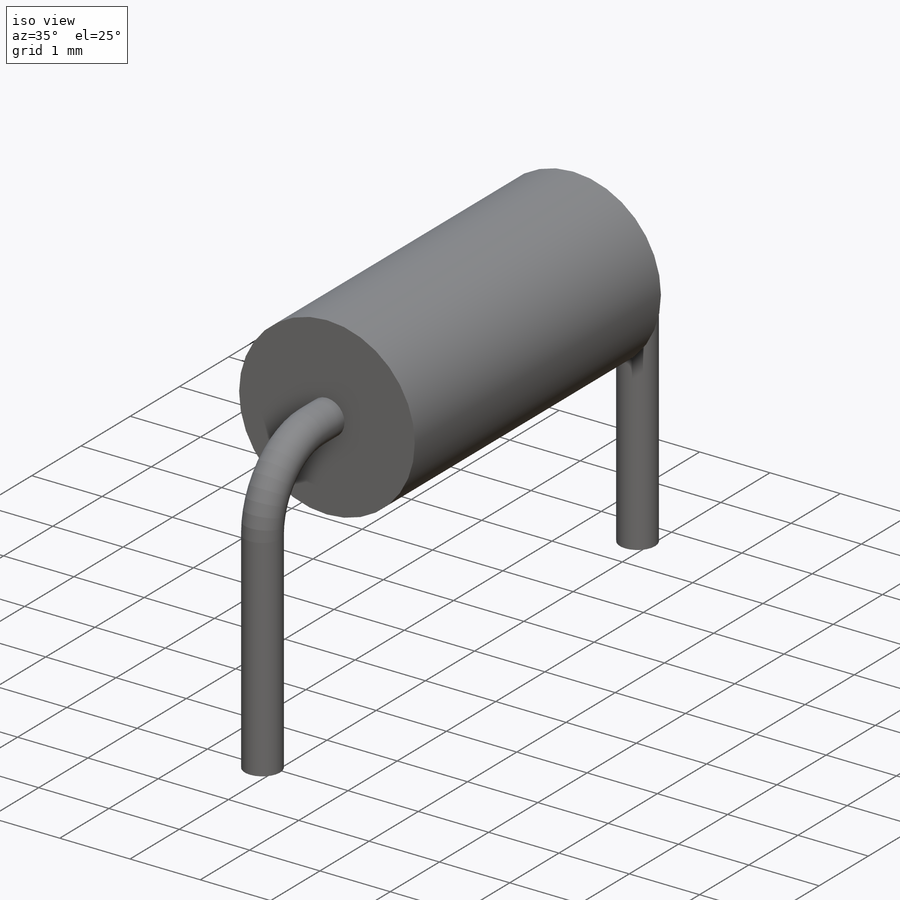
[diagram: iso view]
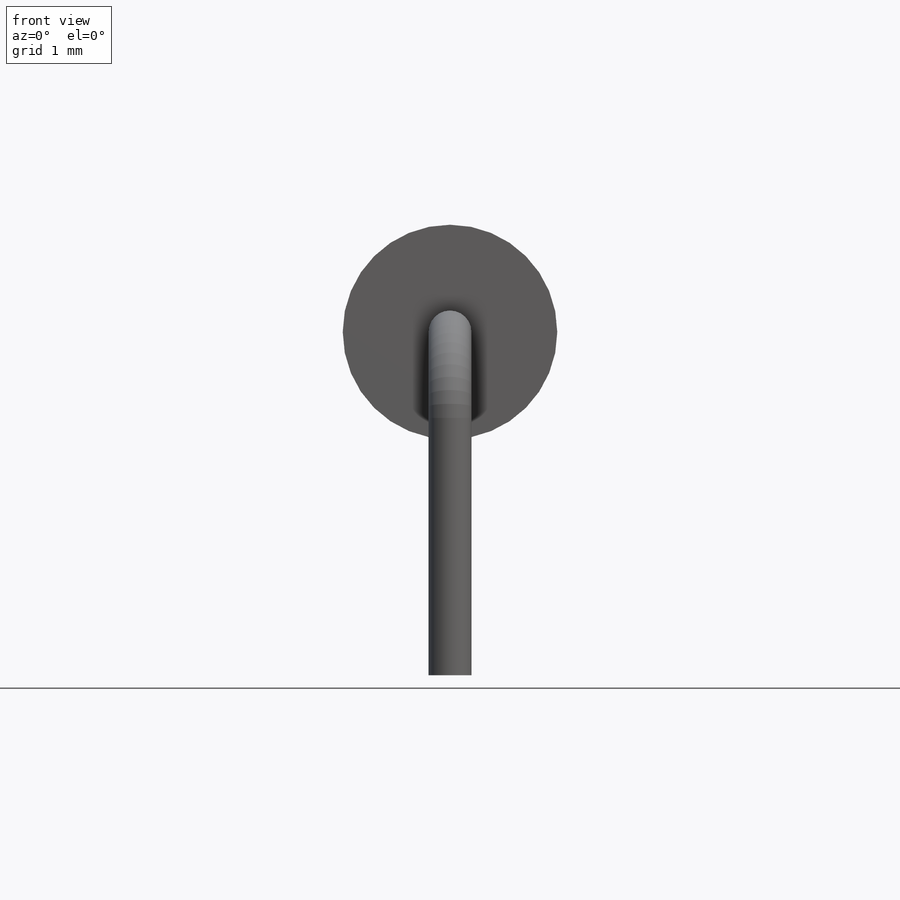
[diagram: front view]
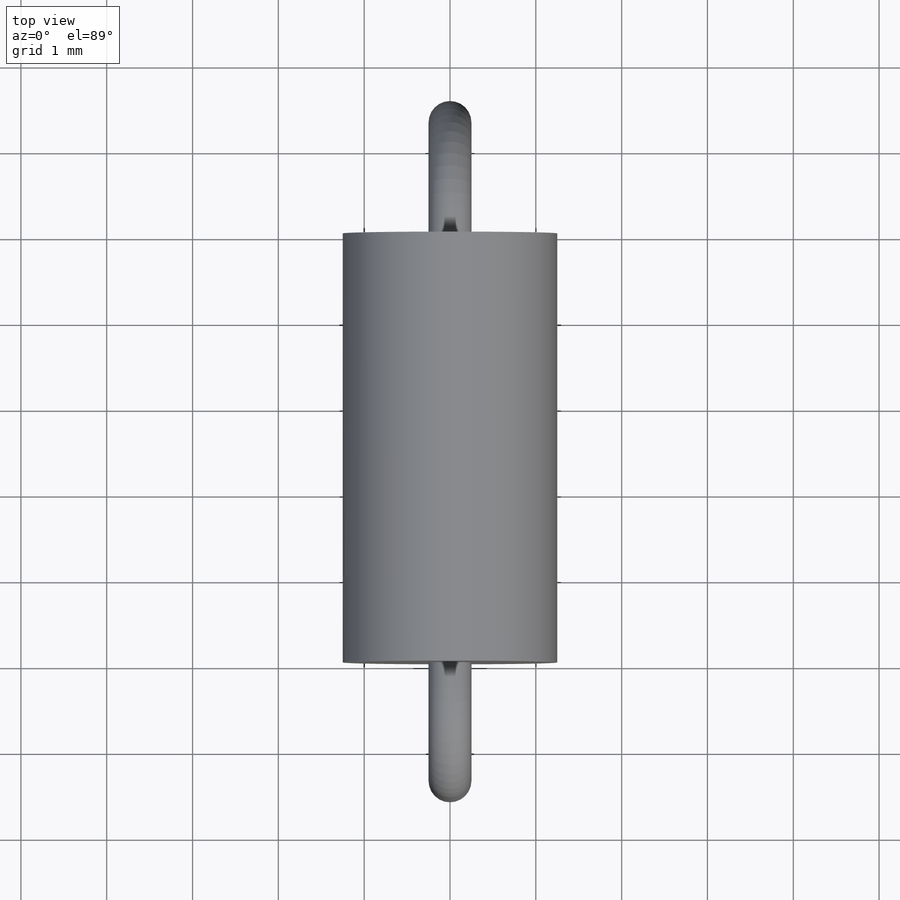
[diagram: top view]
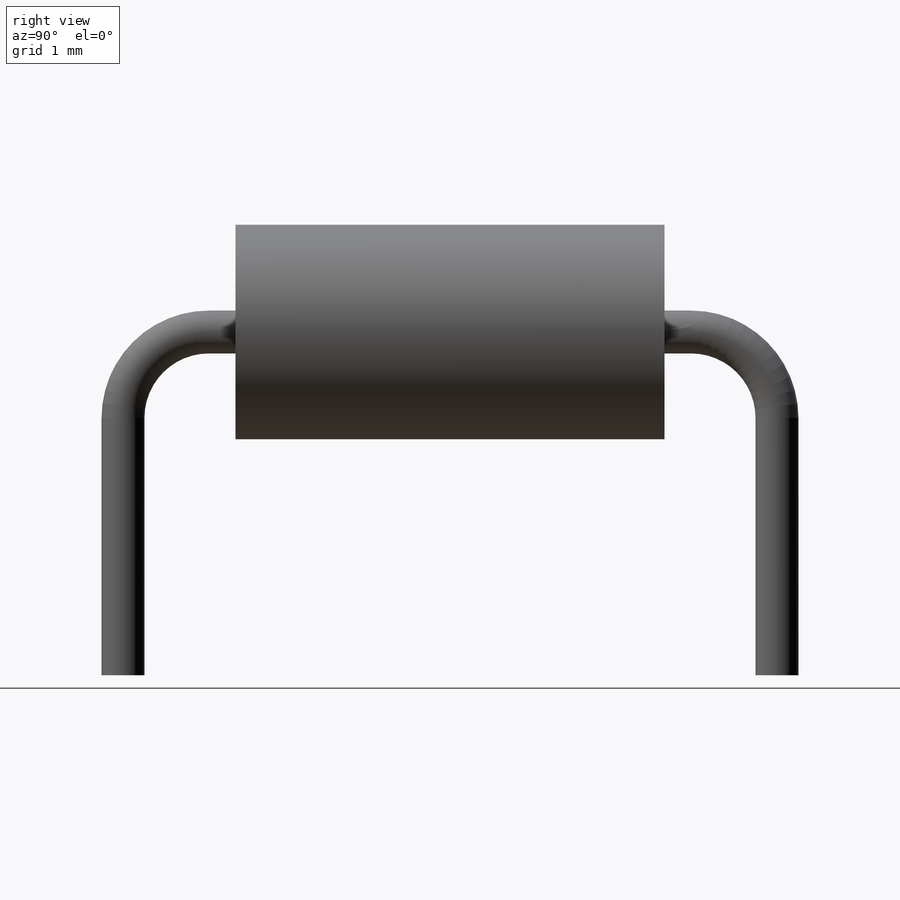
[diagram: right view]
SOLIDWORKS PART (.sldprt)
format: sldprt  version: not decoded by parser v0  size: 184,832 bytes
history: native  units: mm
features: plane x5, sketch x4, extrude x2, material x1, sweep x1, mirror x1 (+8 scaffold rows collapsed)
feature tree (22):
  scaffold x8  (default folders/planes/origin — collapsed)
  material  "Matériau <non spécifié>"
  plane  "Plan de face"
  plane  "Plan de dessus"
  plane  "Plan de droite"
  sketch  "Esquisse1"  dims[D1=2.5mm]
  extrude  "Boss.-Extru.1"  Depth=4mm
  sketch  "Esquisse2"  dims[D1=2.499mm]
  extrude  "Boss.-Extru.2"  Depth=1mm
  plane  "Plan1"  Offset=0mm
  sketch  "Esquisse3"  dims[D3=1.0mm D1=1.31mm D2=4.0mm]
  sketch  "Esquisse4"  dims[D1=0.5mm]
  sweep  "Balayage1"
  plane  "Plan2"  Offset=2.5mm
  mirror  "Symétrie1"
decode coverage: 6 of 8 modeling features carry decoded parameters
note: suppression state not decoded; provenance and decode notes live in map.json
